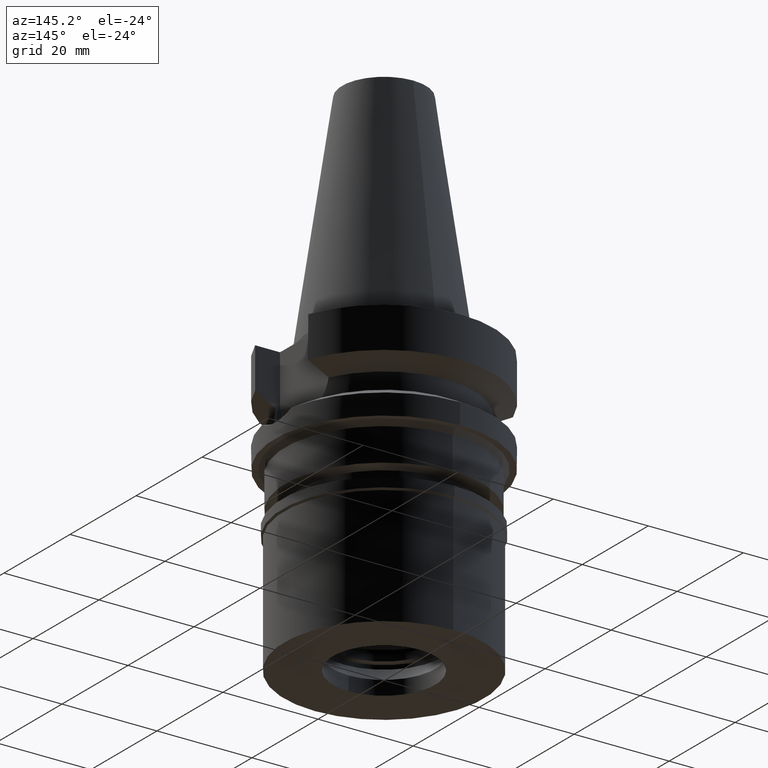
[diagram: clean part render]
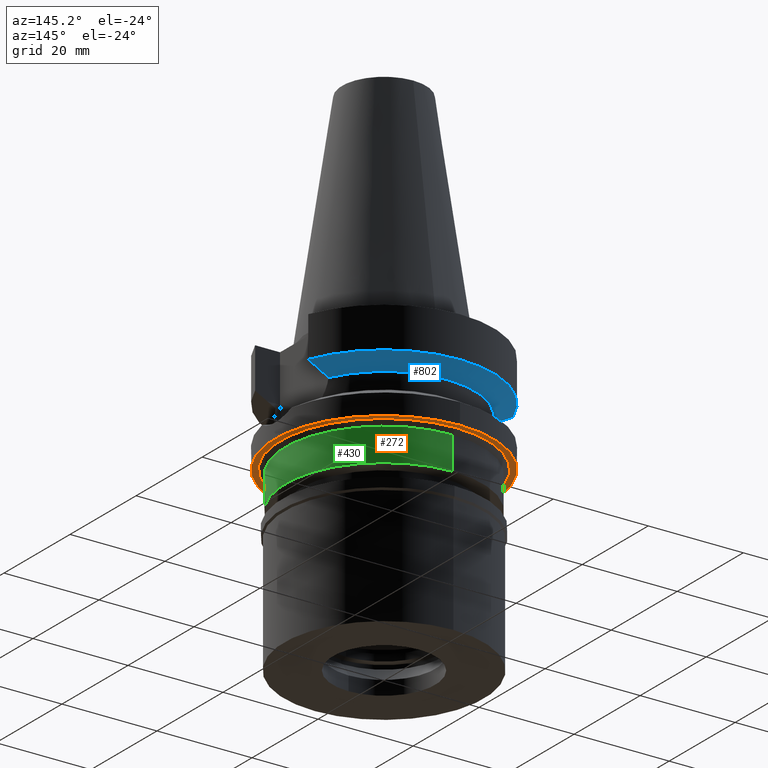
[diagram: same view with three faces highlighted in distinct colors, each labeled with its STEP entity id]
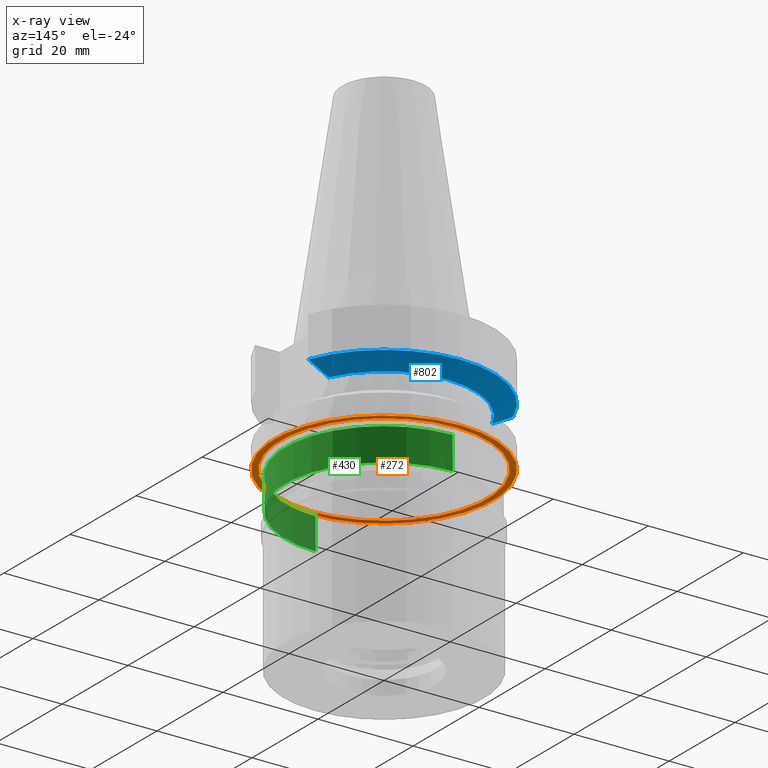
[diagram: x-ray of the same camera — body ghosted, the three highlighted faces saturated]
A machine part, auxiliary view with three faces highlighted in distinct colors.
The next image is the same camera in x-ray (body ghosted, the three faces saturated) — at least one of them is partly hidden behind the body in this view.
Their STEP definitions:

[orange] entity #272 — the highlighted planar face has unit normal (0, 0, -1).
#87 = AXIS2_PLACEMENT_3D ( 'NONE', #2906, #304, #808 ) ;
#180 = PLANE ( 'NONE',  #1684 ) ;
#272 = ADVANCED_FACE ( 'NONE', ( #1347, #2283 ), #180, .T. ) ;
#285 = CARTESIAN_POINT ( 'NONE',  ( 0.0000000000000000000, -21.75000000000000000, -22.00000000000000000 ) ) ;
#304 = DIRECTION ( 'NONE',  ( 0.0000000000000000000, 0.0000000000000000000, -1.000000000000000000 ) ) ;
#323 = DIRECTION ( 'NONE',  ( 0.0000000000000000000, 0.0000000000000000000, 1.000000000000000000 ) ) ;
#339 = AXIS2_PLACEMENT_3D ( 'NONE', #1481, #323, #1409 ) ;
#427 = DIRECTION ( 'NONE',  ( 0.0000000000000000000, -1.000000000000000000, 0.0000000000000000000 ) ) ;
#543 = CARTESIAN_POINT ( 'NONE',  ( 0.0000000000000000000, 0.0000000000000000000, -22.00000000000000000 ) ) ;
#657 = CARTESIAN_POINT ( 'NONE',  ( 0.0000000000000000000, 0.0000000000000000000, -22.00000000000000000 ) ) ;
#662 = VERTEX_POINT ( 'NONE', #285 ) ;
#729 = CIRCLE ( 'NONE', #339, 23.00000000000000000 ) ;
#808 = DIRECTION ( 'NONE',  ( 0.0000000000000000000, 1.000000000000000000, 0.0000000000000000000 ) ) ;
#883 = CARTESIAN_POINT ( 'NONE',  ( 0.0000000000000000000, 23.00000000000000000, -22.00000000000000000 ) ) ;
#958 = VERTEX_POINT ( 'NONE', #1382 ) ;
#1032 = CARTESIAN_POINT ( 'NONE',  ( 0.0000000000000000000, 0.0000000000000000000, -22.00000000000000000 ) ) ;
#1347 = FACE_OUTER_BOUND ( 'NONE', #2803, .T. ) ;
#1382 = CARTESIAN_POINT ( 'NONE',  ( 0.0000000000000000000, 21.75000000000000000, -22.00000000000000000 ) ) ;
#1409 = DIRECTION ( 'NONE',  ( 0.0000000000000000000, 1.000000000000000000, 0.0000000000000000000 ) ) ;
#1419 = EDGE_CURVE ( 'NONE', #958, #662, #2922, .T. ) ;
#1440 = EDGE_CURVE ( 'NONE', #662, #958, #2479, .T. ) ;
#1465 = ORIENTED_EDGE ( 'NONE', *, *, #1504, .F. ) ;
#1481 = CARTESIAN_POINT ( 'NONE',  ( 0.0000000000000000000, 0.0000000000000000000, -22.00000000000000000 ) ) ;
#1504 = EDGE_CURVE ( 'NONE', #2475, #1947, #729, .T. ) ;
#1578 = DIRECTION ( 'NONE',  ( 0.0000000000000000000, 0.0000000000000000000, 1.000000000000000000 ) ) ;
#1590 = AXIS2_PLACEMENT_3D ( 'NONE', #543, #2925, #1792 ) ;
#1684 = AXIS2_PLACEMENT_3D ( 'NONE', #1032, #2250, #2654 ) ;
#1792 = DIRECTION ( 'NONE',  ( 0.0000000000000000000, -1.000000000000000000, 0.0000000000000000000 ) ) ;
#1938 = CIRCLE ( 'NONE', #2533, 23.00000000000000000 ) ;
#1947 = VERTEX_POINT ( 'NONE', #2166 ) ;
#2166 = CARTESIAN_POINT ( 'NONE',  ( 0.0000000000000000000, -23.00000000000000000, -22.00000000000000000 ) ) ;
#2250 = DIRECTION ( 'NONE',  ( 0.0000000000000000000, 0.0000000000000000000, -1.000000000000000000 ) ) ;
#2283 = FACE_BOUND ( 'NONE', #2789, .T. ) ;
#2305 = ORIENTED_EDGE ( 'NONE', *, *, #1440, .F. ) ;
#2447 = EDGE_CURVE ( 'NONE', #1947, #2475, #1938, .T. ) ;
#2475 = VERTEX_POINT ( 'NONE', #883 ) ;
#2479 = CIRCLE ( 'NONE', #1590, 21.75000000000000000 ) ;
#2533 = AXIS2_PLACEMENT_3D ( 'NONE', #657, #1578, #427 ) ;
#2654 = DIRECTION ( 'NONE',  ( 0.0000000000000000000, -1.000000000000000000, 0.0000000000000000000 ) ) ;
#2679 = ORIENTED_EDGE ( 'NONE', *, *, #2447, .F. ) ;
#2789 = EDGE_LOOP ( 'NONE', ( #2965, #2305 ) ) ;
#2803 = EDGE_LOOP ( 'NONE', ( #1465, #2679 ) ) ;
#2906 = CARTESIAN_POINT ( 'NONE',  ( 0.0000000000000000000, 0.0000000000000000000, -22.00000000000000000 ) ) ;
#2922 = CIRCLE ( 'NONE', #87, 21.75000000000000000 ) ;
#2925 = DIRECTION ( 'NONE',  ( 0.0000000000000000000, 0.0000000000000000000, -1.000000000000000000 ) ) ;
#2965 = ORIENTED_EDGE ( 'NONE', *, *, #1419, .F. ) ;

[blue] entity #802 — the highlighted conical surface has half-angle 60 deg.
#30 = CARTESIAN_POINT ( 'NONE',  ( 21.54524325238000060, 8.049999577379001181, -9.567211146543000311 ) ) ;
#46 = CARTESIAN_POINT ( 'NONE',  ( -21.54524231189000005, 8.050002094537999753, -9.567194606710000215 ) ) ;
#121 = CARTESIAN_POINT ( 'NONE',  ( 0.0000000000000000000, 0.0000000000000000000, -9.567208369710998639 ) ) ;
#319 = CARTESIAN_POINT ( 'NONE',  ( -18.30417677678823196, 8.050000009832531944, -11.30245973849987884 ) ) ;
#380 = CARTESIAN_POINT ( 'NONE',  ( 21.54524325238000060, 8.049999577379001181, -9.567211146543000311 ) ) ;
#390 = VERTEX_POINT ( 'NONE', #1391 ) ;
#459 = CARTESIAN_POINT ( 'NONE',  ( -21.54524231189000005, 8.050002094537999753, -9.567194606710000215 ) ) ;
#518 = EDGE_LOOP ( 'NONE', ( #2656, #1279, #2466, #2895, #861, #1331 ) ) ;
#549 = EDGE_CURVE ( 'NONE', #2693, #1305, #1804, .T. ) ;
#577 = CIRCLE ( 'NONE', #2284, 23.00000000000000000 ) ;
#670 = CIRCLE ( 'NONE', #908, 19.00000000000000000 ) ;
#672 = CARTESIAN_POINT ( 'NONE',  ( 18.30334768058808592, 8.049999956193227391, -11.30291651749210047 ) ) ;
#802 = ADVANCED_FACE ( 'NONE', ( #1071 ), #2665, .T. ) ;
#806 = VERTEX_POINT ( 'NONE', #46 ) ;
#861 = ORIENTED_EDGE ( 'NONE', *, *, #549, .F. ) ;
#865 = CARTESIAN_POINT ( 'NONE',  ( 19.78174442298433533, 8.049991903556987793, -10.51718567366341262 ) ) ;
#893 = EDGE_CURVE ( 'NONE', #1305, #1307, #670, .T. ) ;
#899 = B_SPLINE_CURVE_WITH_KNOTS ( 'NONE', 3,
 ( #3001, #2106, #672, #3013 ),
 .UNSPECIFIED., .F., .F.,
 ( 4, 4 ),
 ( 0.0000000000000000000, 1.000000000000000000 ),
 .UNSPECIFIED. ) ;
#908 = AXIS2_PLACEMENT_3D ( 'NONE', #2758, #1849, #2119 ) ;
#1001 = EDGE_CURVE ( 'NONE', #1307, #390, #899, .T. ) ;
#1019 = DIRECTION ( 'NONE',  ( 0.0000000000000000000, 0.0000000000000000000, 1.000000000000000000 ) ) ;
#1071 = FACE_OUTER_BOUND ( 'NONE', #518, .T. ) ;
#1192 = CARTESIAN_POINT ( 'NONE',  ( -19.78176599729541962, 8.050001299788625886, -10.51717224217188473 ) ) ;
#1218 = CARTESIAN_POINT ( 'NONE',  ( -18.96736186674000280, 8.050001277723000115, -10.94999977542999936 ) ) ;
#1250 = DIRECTION ( 'NONE',  ( 0.0000000000000000000, 1.000000000000000000, 0.0000000000000000000 ) ) ;
#1279 = ORIENTED_EDGE ( 'NONE', *, *, #1507, .T. ) ;
#1291 = CARTESIAN_POINT ( 'NONE',  ( 20.64098922513857204, 8.049999155450739963, -10.05625859774404063 ) ) ;
#1305 = VERTEX_POINT ( 'NONE', #2554 ) ;
#1307 = VERTEX_POINT ( 'NONE', #1386 ) ;
#1331 = ORIENTED_EDGE ( 'NONE', *, *, #2664, .T. ) ;
#1386 = CARTESIAN_POINT ( 'NONE',  ( 17.23531622907000482, 7.996491146279001150, -11.87660607779999999 ) ) ;
#1391 = CARTESIAN_POINT ( 'NONE',  ( 18.96738966530000070, 8.049994318182998043, -10.95000099923000114 ) ) ;
#1448 = AXIS2_PLACEMENT_3D ( 'NONE', #1766, #1531, #2477 ) ;
#1507 = EDGE_CURVE ( 'NONE', #2137, #390, #2648, .T. ) ;
#1531 = DIRECTION ( 'NONE',  ( 0.0000000000000000000, 0.0000000000000000000, 1.000000000000000000 ) ) ;
#1724 = CARTESIAN_POINT ( 'NONE',  ( -17.72682660558156797, 8.027186146911869713, -11.61172867025967115 ) ) ;
#1766 = CARTESIAN_POINT ( 'NONE',  ( 0.0000000000000000000, 0.0000000000000000000, -10.72190890808999875 ) ) ;
#1804 = B_SPLINE_CURVE_WITH_KNOTS ( 'NONE', 3,
 ( #1218, #319, #1724, #2204 ),
 .UNSPECIFIED., .F., .F.,
 ( 4, 4 ),
 ( 0.0000000000000000000, 1.000000000000000000 ),
 .UNSPECIFIED. ) ;
#1849 = DIRECTION ( 'NONE',  ( 0.0000000000000000000, 0.0000000000000000000, -1.000000000000000000 ) ) ;
#1936 = B_SPLINE_CURVE_WITH_KNOTS ( 'NONE', 3,
 ( #2583, #1192, #2805, #459 ),
 .UNSPECIFIED., .F., .F.,
 ( 4, 4 ),
 ( 0.0000000000000000000, 1.000000000000000000 ),
 .UNSPECIFIED. ) ;
#2009 = CARTESIAN_POINT ( 'NONE',  ( 18.96738966530000070, 8.049994318182998043, -10.95000099923000114 ) ) ;
#2106 = CARTESIAN_POINT ( 'NONE',  ( 17.72598986851142300, 8.027133616167654750, -11.61218197892570814 ) ) ;
#2119 = DIRECTION ( 'NONE',  ( 0.0000000000000000000, 1.000000000000000000, 0.0000000000000000000 ) ) ;
#2137 = VERTEX_POINT ( 'NONE', #30 ) ;
#2204 = CARTESIAN_POINT ( 'NONE',  ( -17.23531135312000018, 7.996501749183000385, -11.87660739350999961 ) ) ;
#2284 = AXIS2_PLACEMENT_3D ( 'NONE', #121, #1019, #1250 ) ;
#2372 = CARTESIAN_POINT ( 'NONE',  ( -18.96736186674000280, 8.050001277723000115, -10.94999977542999936 ) ) ;
#2466 = ORIENTED_EDGE ( 'NONE', *, *, #1001, .F. ) ;
#2477 = DIRECTION ( 'NONE',  ( 0.0000000000000000000, 1.000000000000000000, 0.0000000000000000000 ) ) ;
#2554 = CARTESIAN_POINT ( 'NONE',  ( -17.23531135312000018, 7.996501749183000385, -11.87660739350999961 ) ) ;
#2583 = CARTESIAN_POINT ( 'NONE',  ( -18.96736186674000280, 8.050001277723000115, -10.94999977542999936 ) ) ;
#2648 = B_SPLINE_CURVE_WITH_KNOTS ( 'NONE', 3,
 ( #380, #1291, #865, #2009 ),
 .UNSPECIFIED., .F., .F.,
 ( 4, 4 ),
 ( 0.0000000000000000000, 1.000000000000000000 ),
 .UNSPECIFIED. ) ;
#2656 = ORIENTED_EDGE ( 'NONE', *, *, #2854, .F. ) ;
#2664 = EDGE_CURVE ( 'NONE', #2693, #806, #1936, .T. ) ;
#2665 = CONICAL_SURFACE ( 'NONE', #1448, 21.00000000000000000, 1.047197551196400456 ) ;
#2693 = VERTEX_POINT ( 'NONE', #2372 ) ;
#2758 = CARTESIAN_POINT ( 'NONE',  ( 0.0000000000000000000, 0.0000000000000000000, -11.87660944646999894 ) ) ;
#2805 = CARTESIAN_POINT ( 'NONE',  ( -20.64102060459518029, 8.050004185766381326, -10.05624058887161532 ) ) ;
#2854 = EDGE_CURVE ( 'NONE', #2137, #806, #577, .T. ) ;
#2895 = ORIENTED_EDGE ( 'NONE', *, *, #893, .F. ) ;
#3001 = CARTESIAN_POINT ( 'NONE',  ( 17.23531622907000482, 7.996491146279001150, -11.87660607779999999 ) ) ;
#3013 = CARTESIAN_POINT ( 'NONE',  ( 18.96738966530000070, 8.049994318182998043, -10.95000099923000114 ) ) ;

[green] entity #430 — the highlighted cylindrical surface (partial cylindrical patch) has radius 20.75 mm, axis along (0, 0, -1).
#14 = CARTESIAN_POINT ( 'NONE',  ( 0.0000000000000000000, 20.75000000000000000, -29.89999999999999858 ) ) ;
#85 = VECTOR ( 'NONE', #2480, 1000.000000000000000 ) ;
#127 = ORIENTED_EDGE ( 'NONE', *, *, #2799, .T. ) ;
#136 = VERTEX_POINT ( 'NONE', #700 ) ;
#245 = CARTESIAN_POINT ( 'NONE',  ( 0.0000000000000000000, 0.0000000000000000000, 53.26999999999999602 ) ) ;
#266 = DIRECTION ( 'NONE',  ( 0.0000000000000000000, 0.0000000000000000000, -1.000000000000000000 ) ) ;
#398 = LINE ( 'NONE', #1320, #533 ) ;
#430 = ADVANCED_FACE ( 'NONE', ( #1890 ), #1633, .T. ) ;
#531 = VERTEX_POINT ( 'NONE', #799 ) ;
#533 = VECTOR ( 'NONE', #2971, 1000.000000000000000 ) ;
#700 = CARTESIAN_POINT ( 'NONE',  ( 0.0000000000000000000, -20.75000000000000000, -23.00000000000000000 ) ) ;
#799 = CARTESIAN_POINT ( 'NONE',  ( 0.0000000000000000000, 20.75000000000000000, -23.00000000000000000 ) ) ;
#816 = CIRCLE ( 'NONE', #2917, 20.75000000000000000 ) ;
#916 = CARTESIAN_POINT ( 'NONE',  ( 0.0000000000000000000, 20.75000000000000000, -23.00000000000000000 ) ) ;
#1079 = EDGE_CURVE ( 'NONE', #2774, #1226, #816, .T. ) ;
#1160 = CARTESIAN_POINT ( 'NONE',  ( 0.0000000000000000000, 0.0000000000000000000, -23.00000000000000000 ) ) ;
#1166 = AXIS2_PLACEMENT_3D ( 'NONE', #1160, #266, #1899 ) ;
#1170 = DIRECTION ( 'NONE',  ( 0.0000000000000000000, 0.0000000000000000000, -1.000000000000000000 ) ) ;
#1226 = VERTEX_POINT ( 'NONE', #14 ) ;
#1314 = ORIENTED_EDGE ( 'NONE', *, *, #1619, .F. ) ;
#1320 = CARTESIAN_POINT ( 'NONE',  ( 0.0000000000000000000, -20.75000000000000000, -23.00000000000000000 ) ) ;
#1619 = EDGE_CURVE ( 'NONE', #531, #1226, #2078, .T. ) ;
#1633 = CYLINDRICAL_SURFACE ( 'NONE', #1635, 20.75000000000000000 ) ;
#1635 = AXIS2_PLACEMENT_3D ( 'NONE', #245, #1170, #2117 ) ;
#1890 = FACE_OUTER_BOUND ( 'NONE', #2052, .T. ) ;
#1899 = DIRECTION ( 'NONE',  ( 0.0000000000000000000, 1.000000000000000000, 0.0000000000000000000 ) ) ;
#2052 = EDGE_LOOP ( 'NONE', ( #127, #2336, #2683, #1314 ) ) ;
#2078 = LINE ( 'NONE', #916, #85 ) ;
#2117 = DIRECTION ( 'NONE',  ( 0.0000000000000000000, -1.000000000000000000, 0.0000000000000000000 ) ) ;
#2336 = ORIENTED_EDGE ( 'NONE', *, *, #2638, .T. ) ;
#2338 = CARTESIAN_POINT ( 'NONE',  ( 0.0000000000000000000, -20.75000000000000000, -29.89999999999999858 ) ) ;
#2365 = DIRECTION ( 'NONE',  ( 0.0000000000000000000, 0.0000000000000000000, 1.000000000000000000 ) ) ;
#2480 = DIRECTION ( 'NONE',  ( 0.0000000000000000000, 0.0000000000000000000, -1.000000000000000000 ) ) ;
#2484 = CIRCLE ( 'NONE', #1166, 20.75000000000000000 ) ;
#2618 = DIRECTION ( 'NONE',  ( 0.0000000000000000000, -1.000000000000000000, 0.0000000000000000000 ) ) ;
#2638 = EDGE_CURVE ( 'NONE', #136, #2774, #398, .T. ) ;
#2683 = ORIENTED_EDGE ( 'NONE', *, *, #1079, .T. ) ;
#2774 = VERTEX_POINT ( 'NONE', #2338 ) ;
#2799 = EDGE_CURVE ( 'NONE', #531, #136, #2484, .T. ) ;
#2813 = CARTESIAN_POINT ( 'NONE',  ( 0.0000000000000000000, 0.0000000000000000000, -29.89999999999999858 ) ) ;
#2917 = AXIS2_PLACEMENT_3D ( 'NONE', #2813, #2365, #2618 ) ;
#2971 = DIRECTION ( 'NONE',  ( 0.0000000000000000000, 0.0000000000000000000, -1.000000000000000000 ) ) ;